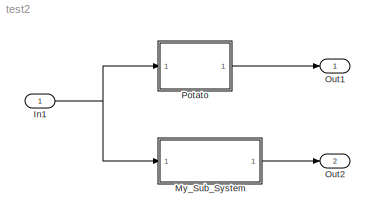
MODEL test2
KIND model
BLOCK [Inport] In1
  IconDisplay = Port number
  SID = 1
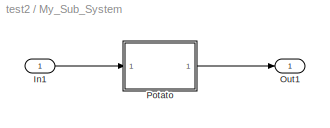
BLOCK [SubSystem] My_Sub_System
  Ports = [1, 1]
  RequestExecContextInheritance = off
  SID = 5
  Variant = off
BLOCK [Inport] My_Sub_System/In1
  IconDisplay = Port number
  SID = 6
BLOCK [Outport] My_Sub_System/Out1
  IconDisplay = Port number
  SID = 7
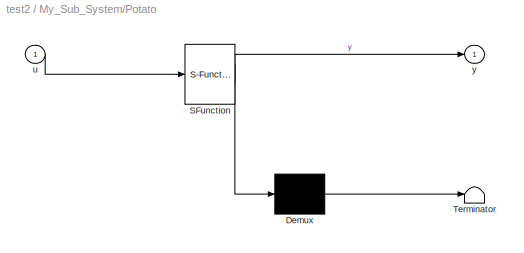
BLOCK [SubSystem] My_Sub_System/Potato
  ErrorFcn = Stateflow.Translate.translate
  PermitHierarchicalResolution = ExplicitOnly
  Ports = [1, 1]
  RequestExecContextInheritance = off
  SFBlockType = MATLAB Function
  SID = 10
  TreatAsAtomicUnit = on
  Variant = off
BLOCK [Demux] My_Sub_System/Potato/ Demux 
  Outputs = 1
  Ports = [1, 1]
  SID = 10::20
BLOCK [S-Function] My_Sub_System/Potato/ SFunction 
  EnableBusSupport = off
  FunctionName = sf_sfun
  PortCounts = [1 2]
  Ports = [1, 2]
  SFcnIsStateOwnerBlock = off
  SFunctionDeploymentMode = off
  SID = 10::19
  Tag = Stateflow S-Function test2 1
BLOCK [Terminator] My_Sub_System/Potato/ Terminator 
  SID = 10::21
BLOCK [Inport] My_Sub_System/Potato/u
  IconDisplay = Port number
  SID = 10::1
BLOCK [Outport] My_Sub_System/Potato/y
  IconDisplay = Port number
  SID = 10::5
BLOCK [Outport] Out1
  IconDisplay = Port number
  SID = 8
BLOCK [Outport] Out2
  IconDisplay = Port number
  Port = 2
  SID = 9
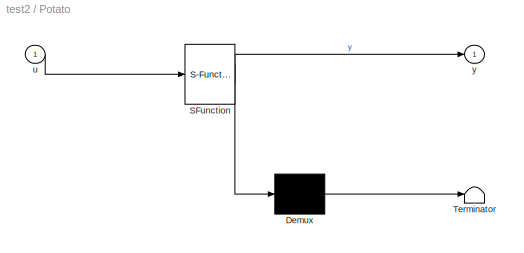
BLOCK [SubSystem] Potato
  ErrorFcn = Stateflow.Translate.translate
  PermitHierarchicalResolution = ExplicitOnly
  Ports = [1, 1]
  RequestExecContextInheritance = off
  SFBlockType = MATLAB Function
  SID = 2
  TreatAsAtomicUnit = on
  Variant = off
BLOCK [Demux] Potato/ Demux 
  Outputs = 1
  Ports = [1, 1]
  SID = 2::20
BLOCK [S-Function] Potato/ SFunction 
  EnableBusSupport = off
  FunctionName = sf_sfun
  PortCounts = [1 2]
  Ports = [1, 2]
  SFcnIsStateOwnerBlock = off
  SFunctionDeploymentMode = off
  SID = 2::19
  Tag = Stateflow S-Function test2 2
BLOCK [Terminator] Potato/ Terminator 
  SID = 2::21
BLOCK [Inport] Potato/u
  IconDisplay = Port number
  SID = 2::1
BLOCK [Outport] Potato/y
  IconDisplay = Port number
  SID = 2::5
NET In1:1 -> My_Sub_System:1, Potato:1
LINE My_Sub_System/In1:1 -> My_Sub_System/Potato:1
LINE My_Sub_System/Potato/ Demux :1 -> My_Sub_System/Potato/ Terminator :1
LINE My_Sub_System/Potato/ SFunction :1 -> My_Sub_System/Potato/ Demux :1
LINE My_Sub_System/Potato/ SFunction :2 -> My_Sub_System/Potato/y:1
LINE My_Sub_System/Potato/u:1 -> My_Sub_System/Potato/ SFunction :1
LINE My_Sub_System/Potato:1 -> My_Sub_System/Out1:1
LINE My_Sub_System:1 -> Out2:1
LINE Potato/ Demux :1 -> Potato/ Terminator :1
LINE Potato/ SFunction :1 -> Potato/ Demux :1
LINE Potato/ SFunction :2 -> Potato/y:1
LINE Potato/u:1 -> Potato/ SFunction :1
LINE Potato:1 -> Out1:1
note: NET lines group one-source signal fan-out (src -> all destinations, sorted); 1:1 wires keep LINE
CHART My_Sub_System/Potato states=1 transitions=1
  STATE_LABEL 'eML_blk_kernel()'
CHART Potato states=1 transitions=1
  STATE_LABEL 'eML_blk_kernel()'
